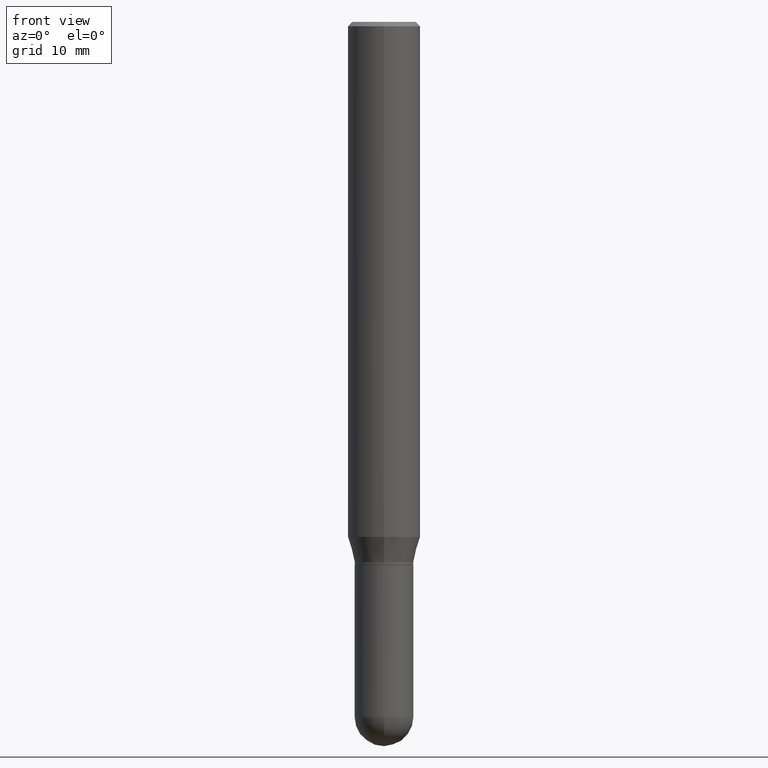
[diagram: clean part render]
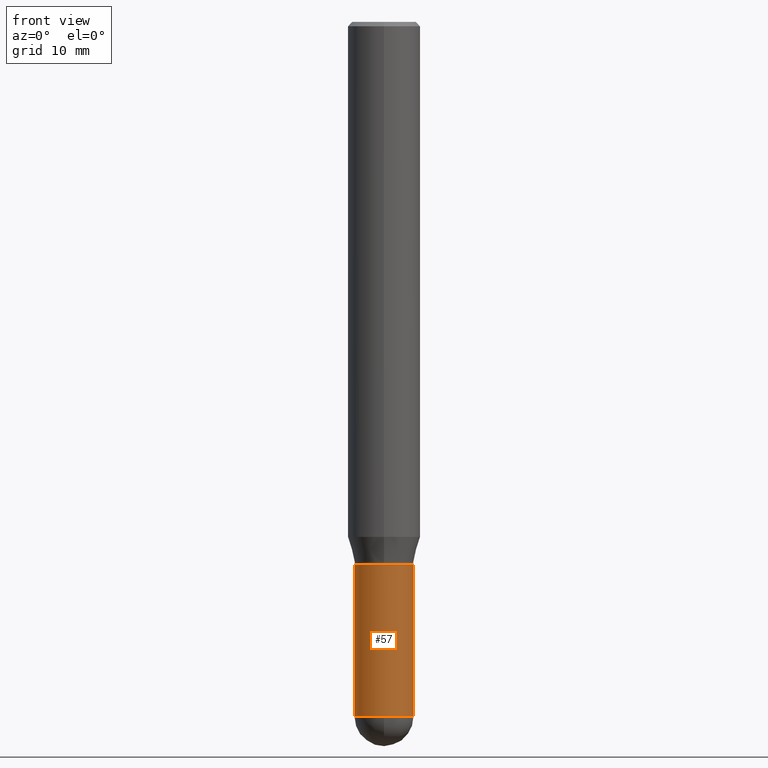
[diagram: same view with one face highlighted and labeled with its STEP entity id]
A machine part, front view. The second image highlights one B-rep face of the part: STEP entity #57.
In plain terms, the highlighted cylindrical surface (edge-blend (fillet) strip) has radius 2.5794 mm, axis along (-0, 0, 1).
Its self-contained STEP definition (entity closure, byte-faithful):
#17 = CARTESIAN_POINT ( 'NONE',  ( 0.1015500000000000708, -7.255647370249939489E-15, -1.875000000000000000 ) ) ;
#22 = EDGE_CURVE ( 'NONE', #301, #316, #102, .T. ) ;
#43 = ORIENTED_EDGE ( 'NONE', *, *, #466, .T. ) ;
#57 = ADVANCED_FACE ( 'NONE', ( #100 ), #479, .T. ) ;
#92 = CIRCLE ( 'NONE', #263, 0.1015500000000000708 ) ;
#99 = CARTESIAN_POINT ( 'NONE',  ( 0.1015500000000000708, -7.091198599190408807E-16, 4.951757515820776576E-30 ) ) ;
#100 = FACE_OUTER_BOUND ( 'NONE', #430, .T. ) ;
#102 = CIRCLE ( 'NONE', #251, 0.1015500000000000985 ) ;
#105 = CARTESIAN_POINT ( 'NONE',  ( -0.1015500000000000708, 7.215561481643822416E-16, -4.995178584153860605E-30 ) ) ;
#112 = DIRECTION ( 'NONE',  ( -2.445468806185136597E-29, 3.491481338843145583E-15, 1.000000000000000000 ) ) ;
#115 = CARTESIAN_POINT ( 'NONE',  ( -0.1015500000000000708, -6.738779315575238500E-15, -1.875000000000000000 ) ) ;
#128 = ORIENTED_EDGE ( 'NONE', *, *, #388, .T. ) ;
#136 = DIRECTION ( 'NONE',  ( -2.445468806185136597E-29, 3.491481338843145583E-15, 1.000000000000000000 ) ) ;
#137 = DIRECTION ( 'NONE',  ( 1.000000000000000000, -6.982962677686269866E-15, 0.000000000000000000 ) ) ;
#141 = EDGE_CURVE ( 'NONE', #199, #206, #225, .T. ) ;
#166 = ORIENTED_EDGE ( 'NONE', *, *, #381, .F. ) ;
#179 = CIRCLE ( 'NONE', #245, 0.1015500000000000985 ) ;
#199 = VERTEX_POINT ( 'NONE', #228 ) ;
#201 = CARTESIAN_POINT ( 'NONE',  ( 0.1015500000000000985, -8.169455323658661228E-15, -2.398450000000000415 ) ) ;
#206 = VERTEX_POINT ( 'NONE', #115 ) ;
#208 = ORIENTED_EDGE ( 'NONE', *, *, #141, .F. ) ;
#222 = DIRECTION ( 'NONE',  ( -2.445468806185136597E-29, 3.491481338843145583E-15, 1.000000000000000000 ) ) ;
#225 = LINE ( 'NONE', #105, #439 ) ;
#228 = CARTESIAN_POINT ( 'NONE',  ( -0.1015500000000000985, -6.738779315575238500E-15, -2.398450000000000415 ) ) ;
#229 = CARTESIAN_POINT ( 'NONE',  ( 4.585254011597131119E-29, -6.546527510330898707E-15, -1.875000000000000000 ) ) ;
#231 = AXIS2_PLACEMENT_3D ( 'NONE', #442, #112, #390 ) ;
#245 = AXIS2_PLACEMENT_3D ( 'NONE', #335, #452, #482 ) ;
#251 = AXIS2_PLACEMENT_3D ( 'NONE', #445, #136, #256 ) ;
#256 = DIRECTION ( 'NONE',  ( 1.000000000000000000, -6.982962677686258033E-15, 0.000000000000000000 ) ) ;
#263 = AXIS2_PLACEMENT_3D ( 'NONE', #229, #222, #137 ) ;
#279 = VECTOR ( 'NONE', #304, 39.37007874015748143 ) ;
#301 = VERTEX_POINT ( 'NONE', #477 ) ;
#304 = DIRECTION ( 'NONE',  ( -2.445468806185136877E-29, 3.491481338843145188E-15, 1.000000000000000000 ) ) ;
#316 = VERTEX_POINT ( 'NONE', #201 ) ;
#335 = CARTESIAN_POINT ( 'NONE',  ( 5.865334658194741045E-29, -8.374143417148343763E-15, -2.398450000000000415 ) ) ;
#340 = LINE ( 'NONE', #99, #279 ) ;
#376 = ORIENTED_EDGE ( 'NONE', *, *, #22, .T. ) ;
#381 = EDGE_CURVE ( 'NONE', #206, #467, #92, .T. ) ;
#388 = EDGE_CURVE ( 'NONE', #199, #301, #179, .T. ) ;
#390 = DIRECTION ( 'NONE',  ( 1.000000000000000000, -6.982962677686266711E-15, 4.876176775795936353E-29 ) ) ;
#422 = DIRECTION ( 'NONE',  ( -2.445468806185136877E-29, 3.491481338843145188E-15, 1.000000000000000000 ) ) ;
#430 = EDGE_LOOP ( 'NONE', ( #208, #128, #376, #43, #166 ) ) ;
#439 = VECTOR ( 'NONE', #422, 39.37007874015748143 ) ;
#442 = CARTESIAN_POINT ( 'NONE',  ( 0.000000000000000000, 0.000000000000000000, 0.000000000000000000 ) ) ;
#445 = CARTESIAN_POINT ( 'NONE',  ( 5.865334658194741045E-29, -8.374143417148343763E-15, -2.398450000000000415 ) ) ;
#452 = DIRECTION ( 'NONE',  ( -2.445468806185136597E-29, 3.491481338843145583E-15, 1.000000000000000000 ) ) ;
#466 = EDGE_CURVE ( 'NONE', #316, #467, #340, .T. ) ;
#467 = VERTEX_POINT ( 'NONE', #17 ) ;
#477 = CARTESIAN_POINT ( 'NONE',  ( -7.215561481643230770E-16, -0.1015500000000083697, -2.398449999999999971 ) ) ;
#479 = CYLINDRICAL_SURFACE ( 'NONE', #231, 0.1015500000000000708 ) ;
#482 = DIRECTION ( 'NONE',  ( 1.000000000000000000, -6.982962677686258033E-15, 0.000000000000000000 ) ) ;